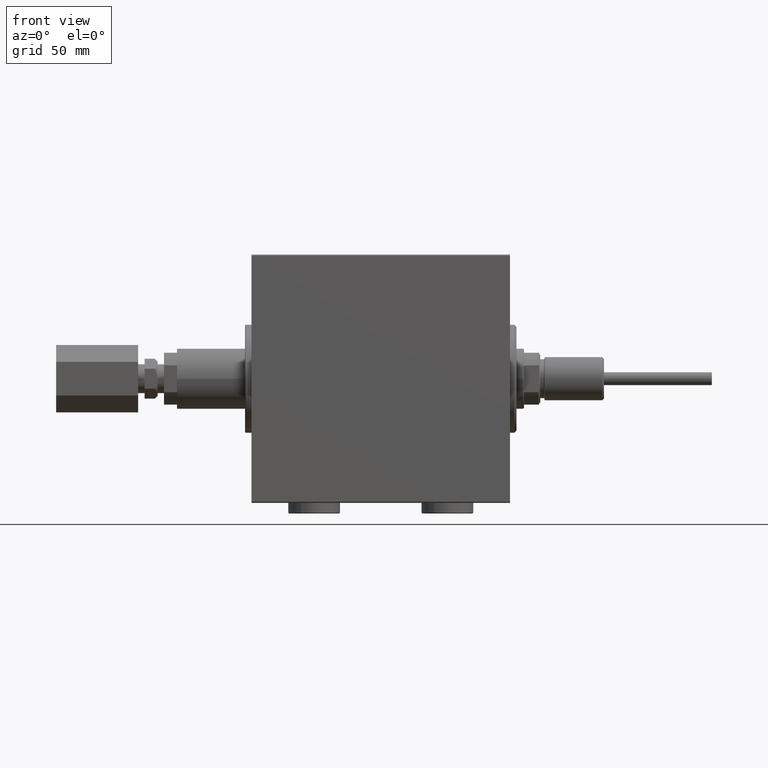
[diagram: clean part render]
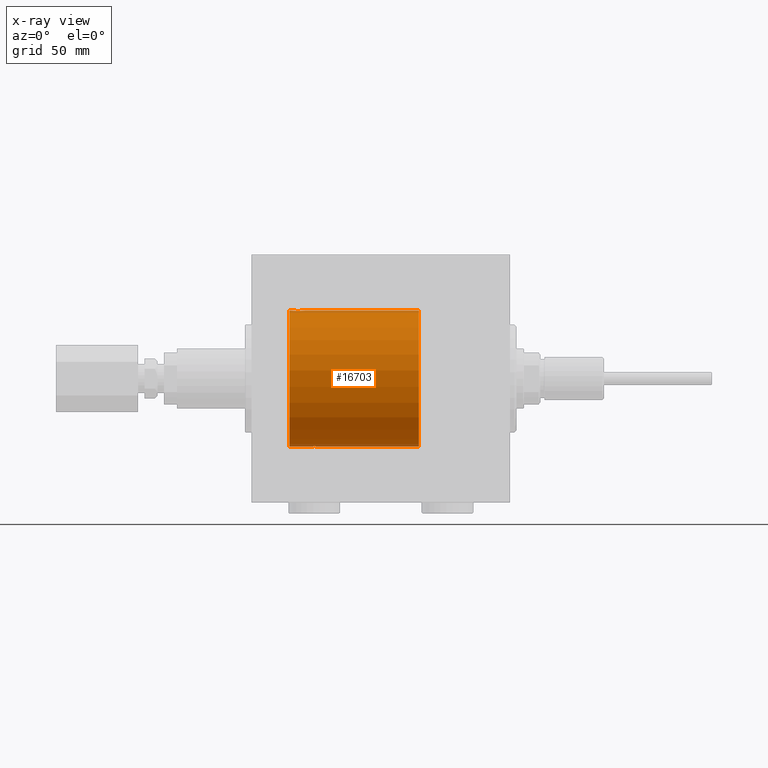
[diagram: x-ray — body ghosted, one internal face saturated and labeled with its STEP entity id]
A machine part, front view, then the same camera in x-ray: the body is ghosted and one INTERNAL B-rep face — a face not visible from any outside direction — is saturated and labeled: STEP entity #16703.
In plain terms, the highlighted cylindrical surface (partial cylindrical patch) has radius 31.5 mm, axis along (1, 0, -0).
Its self-contained STEP definition (entity closure, byte-faithful):
#590 = VERTEX_POINT ( 'NONE', #39072 ) ;
#613 = CARTESIAN_POINT ( 'NONE',  ( 88.86841163972633240, 2.384155341399015082, -31.40983767558390483 ) ) ;
#860 = CARTESIAN_POINT ( 'NONE',  ( 88.71742588226805992, 2.260013192167869445, -31.41912713670168955 ) ) ;
#1590 = CARTESIAN_POINT ( 'NONE',  ( 89.92102991406851231, 2.903824817694228511, -31.36589387714387556 ) ) ;
#2061 = CARTESIAN_POINT ( 'NONE',  ( 95.20000000000000284, -2.116947682205846230E-23, 31.50000000000000000 ) ) ;
#2363 = CARTESIAN_POINT ( 'NONE',  ( 102.2000000000000028, 3.857637417314162689E-15, -31.50000000000000000 ) ) ;
#3368 = ORIENTED_EDGE ( 'NONE', *, *, #28201, .T. ) ;
#3482 = DIRECTION ( 'NONE',  ( 0.000000000000000000, 0.000000000000000000, 1.000000000000000000 ) ) ;
#3598 = LINE ( 'NONE', #44059, #44568 ) ;
#3725 = CARTESIAN_POINT ( 'NONE',  ( 42.20000000000000284, 0.000000000000000000, 0.000000000000000000 ) ) ;
#4038 = CARTESIAN_POINT ( 'NONE',  ( 102.2000000000000028, 3.857637417314162689E-15, -31.50000000000000000 ) ) ;
#4139 = EDGE_CURVE ( 'NONE', #24014, #10325, #5937, .T. ) ;
#4807 = CARTESIAN_POINT ( 'NONE',  ( 100.0315883602736307, 2.384155341399023520, 31.40983767558390483 ) ) ;
#4843 = CARTESIAN_POINT ( 'NONE',  ( 101.2000000000000171, -2.415502498297804861E-16, 31.50000000000000000 ) ) ;
#5047 = CARTESIAN_POINT ( 'NONE',  ( 98.39688046033349167, 2.999928894260102563, 31.35682424344752306 ) ) ;
#5056 = CARTESIAN_POINT ( 'NONE',  ( 90.89470749274823902, 3.000070712257534300, -31.35681067529873189 ) ) ;
#5290 = CARTESIAN_POINT ( 'NONE',  ( 101.2000000000000028, 0.1983379036618948266, 31.49999999999999289 ) ) ;
#5299 = CARTESIAN_POINT ( 'NONE',  ( 87.70000000000000284, -1.457662500692042870E-14, -31.50000000000000000 ) ) ;
#5608 = EDGE_CURVE ( 'NONE', #590, #6386, #6074, .T. ) ;
#5775 = CARTESIAN_POINT ( 'NONE',  ( 96.87111044284137051, 2.696796994793650981, 31.38443855856935016 ) ) ;
#5880 = EDGE_CURVE ( 'NONE', #6386, #24014, #31141, .T. ) ;
#5937 = LINE ( 'NONE', #20972, #14666 ) ;
#6074 = LINE ( 'NONE', #36161, #7724 ) ;
#6386 = VERTEX_POINT ( 'NONE', #4843 ) ;
#6495 = CARTESIAN_POINT ( 'NONE',  ( 95.93894082546060531, 1.981627308739915216, 31.43792063499535061 ) ) ;
#7116 = CIRCLE ( 'NONE', #7893, 31.50000000000000000 ) ;
#7352 = AXIS2_PLACEMENT_3D ( 'NONE', #3725, #29389, #7665 ) ;
#7665 = DIRECTION ( 'NONE',  ( 0.000000000000000000, 0.000000000000000000, 1.000000000000000000 ) ) ;
#7724 = VECTOR ( 'NONE', #29008, 1000.000000000000000 ) ;
#7832 = ORIENTED_EDGE ( 'NONE', *, *, #17360, .F. ) ;
#7893 = AXIS2_PLACEMENT_3D ( 'NONE', #31312, #35499, #42660 ) ;
#7919 = FACE_OUTER_BOUND ( 'NONE', #10782, .T. ) ;
#8023 = CARTESIAN_POINT ( 'NONE',  ( 90.50311953966654244, 2.999928894260096790, -31.35682424344752306 ) ) ;
#8254 = CARTESIAN_POINT ( 'NONE',  ( 100.8958397180049644, 1.330832861354135144, 31.47239936387595449 ) ) ;
#8264 = CARTESIAN_POINT ( 'NONE',  ( 93.70000000000000284, 3.857637396144153386E-15, -31.50000000000000000 ) ) ;
#8508 = CARTESIAN_POINT ( 'NONE',  ( 100.5859162663947757, 1.829162098167821604, 31.44727042639136627 ) ) ;
#8517 = CARTESIAN_POINT ( 'NONE',  ( 93.68037035466299756, 0.3947854228308287361, -31.49811339059599291 ) ) ;
#8755 = CARTESIAN_POINT ( 'NONE',  ( 100.4592490337673780, 1.983444873066714020, 31.43779820687993976 ) ) ;
#9954 = CARTESIAN_POINT ( 'NONE',  ( 95.29639262129910549, 0.7794402936641361412, 31.49094275383853514 ) ) ;
#10199 = CARTESIAN_POINT ( 'NONE',  ( 95.21962964533705076, 0.3947854228308227409, 31.49811339059598581 ) ) ;
#10325 = VERTEX_POINT ( 'NONE', #39679 ) ;
#10782 = EDGE_LOOP ( 'NONE', ( #46804, #7832, #12163, #39667, #27907, #3368, #29774, #31909 ) ) ;
#11328 = VECTOR ( 'NONE', #47266, 1000.000000000000000 ) ;
#11702 = CARTESIAN_POINT ( 'NONE',  ( 101.1805248189751296, 0.3933386891556650000, 31.49812829325317054 ) ) ;
#11956 = CARTESIAN_POINT ( 'NONE',  ( 91.66552780442064829, 2.847177118681584851, -31.37115363072576102 ) ) ;
#12163 = ORIENTED_EDGE ( 'NONE', *, *, #5608, .T. ) ;
#12196 = CARTESIAN_POINT ( 'NONE',  ( 92.96105917453941458, 1.981627308739911442, -31.43792063499535061 ) ) ;
#12444 = EDGE_CURVE ( 'NONE', #42346, #37592, #30877, .T. ) ;
#12451 = CARTESIAN_POINT ( 'NONE',  ( 93.39631813776284730, 1.329867798385264477, -31.47244047903475916 ) ) ;
#12693 = CARTESIAN_POINT ( 'NONE',  ( 89.73183834159291905, 2.846197268611680986, -31.37124163027857904 ) ) ;
#13891 = CARTESIAN_POINT ( 'NONE',  ( 95.19999999999997442, 0.1958503357044810711, 31.50000000000000000 ) ) ;
#13952 = LINE ( 'NONE', #2363, #11328 ) ;
#14666 = VECTOR ( 'NONE', #43913, 1000.000000000000000 ) ;
#15655 = CARTESIAN_POINT ( 'NONE',  ( 88.31408373360524422, 1.829162098167808725, -31.44727042639135206 ) ) ;
#15900 = CARTESIAN_POINT ( 'NONE',  ( 92.52938585467128974, 2.385694485610538429, -31.40971707706042437 ) ) ;
#16371 = CARTESIAN_POINT ( 'NONE',  ( 101.1042380662973557, 0.7769457993854311795, 31.49100119919085472 ) ) ;
#16703 = ADVANCED_FACE ( 'NONE', ( #7919 ), #26410, .F. ) ;
#17094 = CARTESIAN_POINT ( 'NONE',  ( 96.69557653296075728, 2.602863964129819241, 31.39246667950590464 ) ) ;
#17337 = CARTESIAN_POINT ( 'NONE',  ( 97.23447219557937160, 2.847177118681589292, 31.37115363072576102 ) ) ;
#17360 = EDGE_CURVE ( 'NONE', #590, #24754, #7116, .T. ) ;
#17575 = CARTESIAN_POINT ( 'NONE',  ( 96.37061414532871595, 2.385694485610543314, 31.40971707706042437 ) ) ;
#18622 = DIRECTION ( 'NONE',  ( -1.000000000000000000, -0.000000000000000000, -0.000000000000000000 ) ) ;
#19344 = CARTESIAN_POINT ( 'NONE',  ( 92.02888955715863517, 2.696796994793645652, -31.38443855856935016 ) ) ;
#19595 = CARTESIAN_POINT ( 'NONE',  ( 87.70000000000000284, 0.1983379036618808378, -31.50000000000000711 ) ) ;
#19829 = CARTESIAN_POINT ( 'NONE',  ( 99.70363134844579633, 2.603460270751700278, 31.39242096616744959 ) ) ;
#20067 = CARTESIAN_POINT ( 'NONE',  ( 98.00529250725176666, 3.000070712257539629, 31.35681067529873189 ) ) ;
#20564 = CARTESIAN_POINT ( 'NONE',  ( 97.42154160523337225, 2.903876953428275343, 31.36588880666517909 ) ) ;
#20808 = CARTESIAN_POINT ( 'NONE',  ( 96.21911300874994311, 2.261707786034461432, 31.41901301017587755 ) ) ;
#20972 = CARTESIAN_POINT ( 'NONE',  ( 102.2000000000000028, 0.000000000000000000, 31.50000000000000000 ) ) ;
#23545 = CARTESIAN_POINT ( 'NONE',  ( 100.1825741177319458, 2.260013192167880547, 31.41912713670171087 ) ) ;
#23794 = CARTESIAN_POINT ( 'NONE',  ( 98.97897008593145074, 2.903824817694236504, 31.36589387714387200 ) ) ;
#24014 = VERTEX_POINT ( 'NONE', #40315 ) ;
#24039 = CARTESIAN_POINT ( 'NONE',  ( 92.20442346703926262, 2.602863964129814356, -31.39246667950590464 ) ) ;
#24754 = VERTEX_POINT ( 'NONE', #4038 ) ;
#25423 = CARTESIAN_POINT ( 'NONE',  ( 42.20000000000000284, 3.857637417314162689E-15, -31.50000000000000000 ) ) ;
#25840 = EDGE_CURVE ( 'NONE', #42346, #26407, #13952, .T. ) ;
#26407 = VERTEX_POINT ( 'NONE', #25423 ) ;
#26410 = CYLINDRICAL_SURFACE ( 'NONE', #38569, 31.50000000000000000 ) ;
#27007 = CARTESIAN_POINT ( 'NONE',  ( 93.54686001605625734, 0.9664718879465946655, -31.48569500832682522 ) ) ;
#27243 = CARTESIAN_POINT ( 'NONE',  ( 101.2000000000000171, -2.415502498297804861E-16, 31.50000000000000000 ) ) ;
#27500 = CARTESIAN_POINT ( 'NONE',  ( 93.08511957348213173, 1.830131931565284420, -31.44721086712685931 ) ) ;
#27628 = CARTESIAN_POINT ( 'NONE',  ( 93.70000000000000284, 3.857637396144153386E-15, -31.50000000000000000 ) ) ;
#27741 = CARTESIAN_POINT ( 'NONE',  ( 89.37084398834997501, 2.696575640577645316, -31.38445666459465500 ) ) ;
#27907 = ORIENTED_EDGE ( 'NONE', *, *, #4139, .T. ) ;
#27974 = CARTESIAN_POINT ( 'NONE',  ( 95.59764130386935221, 1.505293155307508624, 31.46443304312125733 ) ) ;
#28201 = EDGE_CURVE ( 'NONE', #10325, #26407, #35697, .T. ) ;
#29008 = DIRECTION ( 'NONE',  ( -1.000000000000000000, -0.000000000000000000, -0.000000000000000000 ) ) ;
#29389 = DIRECTION ( 'NONE',  ( -1.000000000000000000, 0.000000000000000000, 0.000000000000000000 ) ) ;
#29774 = ORIENTED_EDGE ( 'NONE', *, *, #25840, .F. ) ;
#30723 = CARTESIAN_POINT ( 'NONE',  ( 89.19636865155425198, 2.603460270751692285, -31.39242096616744959 ) ) ;
#30877 = B_SPLINE_CURVE_WITH_KNOTS ( 'NONE', 3,
 ( #5299, #19595, #31199, #46239, #34655, #38107, #34400, #15655, #38605, #860, #613, #30723, #27741, #12693, #1590, #30964, #8023, #5056, #42793, #45755, #11956, #19344, #24039, #15900, #45994, #12196, #27500, #42307, #12451, #27007, #41823, #8517, #42060, #8264 ),
 .UNSPECIFIED., .F., .F.,
 ( 4, 2, 2, 2, 2, 2, 2, 2, 2, 2, 2, 2, 2, 2, 2, 2, 4 ),
 ( 5.628175340221608017E-19, 0.0005865426616959176862, 0.001173085323391834939, 0.001759627985087752191, 0.002346170646783669444, 0.002932713308479587347, 0.003519255970175503949, 0.004105798631871421418, 0.004692341293567338888, 0.005278883955263256357, 0.005865426616959173826, 0.006451969278655090428, 0.007038511940351007030, 0.007625054602046924500, 0.008211597263742841102, 0.008798139925438758571, 0.009384682587134676041 ),
 .UNSPECIFIED. ) ;
#30964 = CARTESIAN_POINT ( 'NONE',  ( 90.30837341225169723, 2.980875975682587331, -31.35866508162785138 ) ) ;
#31141 = B_SPLINE_CURVE_WITH_KNOTS ( 'NONE', 3,
 ( #27243, #5290, #11702, #16371, #46483, #8254, #42295, #8508, #8755, #23545, #4807, #19829, #34885, #46231, #23794, #38840, #5047, #20067, #39325, #20564, #17337, #5775, #17094, #17575, #20808, #6495, #43266, #27974, #35856, #40054, #9954, #10199, #13891, #2061 ),
 .UNSPECIFIED., .F., .F.,
 ( 4, 2, 2, 2, 2, 2, 2, 2, 2, 2, 2, 2, 2, 2, 2, 2, 4 ),
 ( 2.347214371482653179E-19, 0.0005865426616959166020, 0.001173085323391832770, 0.001759627985087748722, 0.002346170646783665107, 0.002932713308479581275, 0.003519255970175497444, 0.004105798631871413612, 0.004692341293567330214, 0.005278883955263246816, 0.005865426616959162551, 0.006451969278655079153, 0.007038511940350995755, 0.007625054602046912357, 0.008211597263742828959, 0.008798139925438744693, 0.009384682587134660428 ),
 .UNSPECIFIED. ) ;
#31199 = CARTESIAN_POINT ( 'NONE',  ( 87.71947518102487606, 0.3933386891556530096, -31.49812829325316343 ) ) ;
#31312 = CARTESIAN_POINT ( 'NONE',  ( 102.2000000000000028, 0.000000000000000000, 0.000000000000000000 ) ) ;
#31909 = ORIENTED_EDGE ( 'NONE', *, *, #12444, .T. ) ;
#32711 = CARTESIAN_POINT ( 'NONE',  ( 87.70000000000000284, -1.457662500692042870E-14, -31.50000000000000000 ) ) ;
#34400 = CARTESIAN_POINT ( 'NONE',  ( 88.09633413559200221, 1.503114925126248558, -31.46454030768326149 ) ) ;
#34655 = CARTESIAN_POINT ( 'NONE',  ( 87.85350786472693585, 0.9675486622706014339, -31.48566161620713189 ) ) ;
#34885 = CARTESIAN_POINT ( 'NONE',  ( 99.52915601165001647, 2.696575640577657307, 31.38445666459464789 ) ) ;
#35499 = DIRECTION ( 'NONE',  ( -1.000000000000000000, 0.000000000000000000, 0.000000000000000000 ) ) ;
#35697 = CIRCLE ( 'NONE', #7352, 31.50000000000000000 ) ;
#35856 = CARTESIAN_POINT ( 'NONE',  ( 95.50368186223717260, 1.329867798385260702, 31.47244047903475916 ) ) ;
#36161 = CARTESIAN_POINT ( 'NONE',  ( 102.2000000000000028, 0.000000000000000000, 31.50000000000000000 ) ) ;
#36716 = EDGE_CURVE ( 'NONE', #24754, #37592, #3598, .T. ) ;
#37592 = VERTEX_POINT ( 'NONE', #27628 ) ;
#38107 = CARTESIAN_POINT ( 'NONE',  ( 88.00416028199502705, 1.330832861354122043, -31.47239936387597581 ) ) ;
#38569 = AXIS2_PLACEMENT_3D ( 'NONE', #42202, #45150, #3482 ) ;
#38605 = CARTESIAN_POINT ( 'NONE',  ( 88.44075096623265608, 1.983444873066702696, -31.43779820687994686 ) ) ;
#38840 = CARTESIAN_POINT ( 'NONE',  ( 98.59162658774826582, 2.980875975682594881, 31.35866508162786559 ) ) ;
#39072 = CARTESIAN_POINT ( 'NONE',  ( 102.2000000000000028, 0.000000000000000000, 31.50000000000000000 ) ) ;
#39325 = CARTESIAN_POINT ( 'NONE',  ( 97.80640401948892304, 2.980533683278887569, 31.35869737338551388 ) ) ;
#39667 = ORIENTED_EDGE ( 'NONE', *, *, #5880, .T. ) ;
#39679 = CARTESIAN_POINT ( 'NONE',  ( 42.20000000000000284, 0.000000000000000000, 31.50000000000000000 ) ) ;
#40054 = CARTESIAN_POINT ( 'NONE',  ( 95.35313998394373414, 0.9664718879465890033, 31.48569500832682522 ) ) ;
#40315 = CARTESIAN_POINT ( 'NONE',  ( 95.20000000000000284, -2.116947682205846230E-23, 31.50000000000000000 ) ) ;
#41823 = CARTESIAN_POINT ( 'NONE',  ( 93.60360737870091441, 0.7794402936641409152, -31.49094275383853514 ) ) ;
#42060 = CARTESIAN_POINT ( 'NONE',  ( 93.70000000000005969, 0.1958503357044870663, -31.50000000000002132 ) ) ;
#42202 = CARTESIAN_POINT ( 'NONE',  ( 102.2000000000000028, 0.000000000000000000, 0.000000000000000000 ) ) ;
#42295 = CARTESIAN_POINT ( 'NONE',  ( 100.8036658644080177, 1.503114925126262547, 31.46454030768325438 ) ) ;
#42307 = CARTESIAN_POINT ( 'NONE',  ( 93.30235869613065347, 1.505293155307505737, -31.46443304312125022 ) ) ;
#42346 = VERTEX_POINT ( 'NONE', #32711 ) ;
#42660 = DIRECTION ( 'NONE',  ( 0.000000000000000000, 0.000000000000000000, 1.000000000000000000 ) ) ;
#42793 = CARTESIAN_POINT ( 'NONE',  ( 91.09359598051108264, 2.980533683278882240, -31.35869737338551388 ) ) ;
#43266 = CARTESIAN_POINT ( 'NONE',  ( 95.81488042651790238, 1.830131931565288195, 31.44721086712686642 ) ) ;
#43913 = DIRECTION ( 'NONE',  ( -1.000000000000000000, -0.000000000000000000, -0.000000000000000000 ) ) ;
#44059 = CARTESIAN_POINT ( 'NONE',  ( 102.2000000000000028, 3.857637417314162689E-15, -31.50000000000000000 ) ) ;
#44568 = VECTOR ( 'NONE', #18622, 1000.000000000000000 ) ;
#45150 = DIRECTION ( 'NONE',  ( -1.000000000000000000, -0.000000000000000000, -0.000000000000000000 ) ) ;
#45755 = CARTESIAN_POINT ( 'NONE',  ( 91.47845839476661922, 2.903876953428270014, -31.36588880666517909 ) ) ;
#45994 = CARTESIAN_POINT ( 'NONE',  ( 92.68088699125006258, 2.261707786034456991, -31.41901301017587045 ) ) ;
#46231 = CARTESIAN_POINT ( 'NONE',  ( 99.16816165840711506, 2.846197268611692088, 31.37124163027859325 ) ) ;
#46239 = CARTESIAN_POINT ( 'NONE',  ( 87.79576193370265003, 0.7769457993854201883, -31.49100119919085472 ) ) ;
#46483 = CARTESIAN_POINT ( 'NONE',  ( 101.0464921352731125, 0.9675486622706157558, 31.48566161620712478 ) ) ;
#46804 = ORIENTED_EDGE ( 'NONE', *, *, #36716, .F. ) ;
#47266 = DIRECTION ( 'NONE',  ( -1.000000000000000000, -0.000000000000000000, -0.000000000000000000 ) ) ;